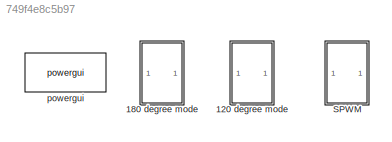
MODEL slx_749f4e8c5b97
KIND model
CONFIG AbsTol = auto
CONFIG EnableMultiTasking = off
CONFIG FixedStep = auto
CONFIG MaxStep = auto
CONFIG MinStep = auto
CONFIG RelTol = 1e-3
CONFIG SampleTimeConstraint = Unconstrained
CONFIG SolverName = VariableStepAuto
CONFIG StartTime = 0.0
CONFIG StopTime = 1
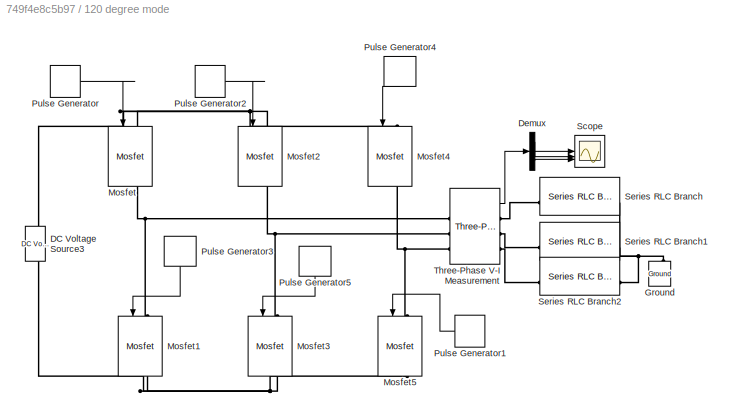
BLOCK [SubSystem] 120 degree mode
BLOCK [Reference] 120 degree mode/DC Voltage Source3  REF=spsDCVoltageSourceLib/DC Voltage Source
  LibrarySourceBlock = sps_lib/Sources/DC Voltage Source
  SourceBlock = spsDCVoltageSourceLib/DC Voltage Source
  SourceType = DC Voltage Source
BLOCK [Demux] 120 degree mode/Demux
  Outputs = 3
BLOCK [Reference] 120 degree mode/Ground  REF=spsGroundLib/Ground
  LibrarySourceBlock = sps_lib/Utilities/Ground
  NameLocation = right
  SourceBlock = spsGroundLib/Ground
  SourceType = Ground
BLOCK [Reference] 120 degree mode/Mosfet  REF=spsMosfetLib/Mosfet
  LibrarySourceBlock = sps_lib/Power Electronics/Mosfet
  NameLocation = left
  SourceBlock = spsMosfetLib/Mosfet
  SourceType = Mosfet
BLOCK [Reference] 120 degree mode/Mosfet1  REF=spsMosfetLib/Mosfet
  LibrarySourceBlock = sps_lib/Power Electronics/Mosfet
  NameLocation = left
  SourceBlock = spsMosfetLib/Mosfet
  SourceType = Mosfet
BLOCK [Reference] 120 degree mode/Mosfet2  REF=spsMosfetLib/Mosfet
  LibrarySourceBlock = sps_lib/Power Electronics/Mosfet
  NameLocation = left
  SourceBlock = spsMosfetLib/Mosfet
  SourceType = Mosfet
BLOCK [Reference] 120 degree mode/Mosfet3  REF=spsMosfetLib/Mosfet
  LibrarySourceBlock = sps_lib/Power Electronics/Mosfet
  NameLocation = left
  SourceBlock = spsMosfetLib/Mosfet
  SourceType = Mosfet
BLOCK [Reference] 120 degree mode/Mosfet4  REF=spsMosfetLib/Mosfet
  LibrarySourceBlock = sps_lib/Power Electronics/Mosfet
  NameLocation = left
  SourceBlock = spsMosfetLib/Mosfet
  SourceType = Mosfet
BLOCK [Reference] 120 degree mode/Mosfet5  REF=spsMosfetLib/Mosfet
  LibrarySourceBlock = sps_lib/Power Electronics/Mosfet
  NameLocation = left
  SourceBlock = spsMosfetLib/Mosfet
  SourceType = Mosfet
BLOCK [DiscretePulseGenerator] 120 degree mode/Pulse Generator
  Period = 1/50
  PulseType = Time based
  PulseWidth = (2/6)*100
BLOCK [DiscretePulseGenerator] 120 degree mode/Pulse Generator1
  NameLocation = top
  Period = 1/50
  PhaseDelay = (20e-3)/6
  PulseType = Time based
  PulseWidth = (2/6)*100
BLOCK [DiscretePulseGenerator] 120 degree mode/Pulse Generator2
  Period = 1/50
  PhaseDelay = 2*(20e-3)/6
  PulseType = Time based
  PulseWidth = (2/6)*100
BLOCK [DiscretePulseGenerator] 120 degree mode/Pulse Generator3
  NameLocation = left
  Period = 1/50
  PhaseDelay = 3*(20e-3)/6
  PulseType = Time based
  PulseWidth = (2/6)*100
BLOCK [DiscretePulseGenerator] 120 degree mode/Pulse Generator4
  NameLocation = left
  Period = 1/50
  PhaseDelay = 4*(20e-3)/6
  PulseType = Time based
  PulseWidth = (2/6)*100
BLOCK [DiscretePulseGenerator] 120 degree mode/Pulse Generator5
  NameLocation = left
  Period = 1/50
  PhaseDelay = 5*(20e-3)/6
  PulseType = Time based
  PulseWidth = (2/6)*100
BLOCK [Scope] 120 degree mode/Scope
  Floating = off
  NumInputPorts = 3
  ScopeSpecificationString = Simulink.scopes.TimeScopeBlockCfg('CurrentConfiguration', extmgr.ConfigurationSet(extmgr.Configuration('Core','General UI',true,'FigureColor',[1 1 1]),extmgr.Configuration('Core','Source UI',true),extmgr.Configuration('Sources','WiredSimulink',true,'DataLoggingVariableName','onetwenty','DataLogging',true),extmgr.Configuration('Visuals','Time Domain',true,'SerializedDisplays',{struct('MinYLimReal',...<+3191ch>
BLOCK [Reference] 120 degree mode/Series RLC Branch  REF=spsSeriesRLCBranchLib/Series RLC Branch
  LibrarySourceBlock = sps_lib/Passives/Series RLC Branch
  SourceBlock = spsSeriesRLCBranchLib/Series RLC Branch
  SourceType = Series RLC Branch
BLOCK [Reference] 120 degree mode/Series RLC Branch1  REF=spsSeriesRLCBranchLib/Series RLC Branch
  LibrarySourceBlock = sps_lib/Passives/Series RLC Branch
  SourceBlock = spsSeriesRLCBranchLib/Series RLC Branch
  SourceType = Series RLC Branch
BLOCK [Reference] 120 degree mode/Series RLC Branch2  REF=spsSeriesRLCBranchLib/Series RLC Branch
  LibrarySourceBlock = sps_lib/Passives/Series RLC Branch
  SourceBlock = spsSeriesRLCBranchLib/Series RLC Branch
  SourceType = Series RLC Branch
BLOCK [Reference] 120 degree mode/Three-Phase V-I Measurement  REF=spsThreePhaseVIMeasurementLib/Three-Phase
V-I Measurement
  LibrarySourceBlock = sps_lib/Sensors and Measurements/Three-Phase\nV-I Measurement
  SourceBlock = spsThreePhaseVIMeasurementLib/Three-Phase\nV-I Measurement
  SourceType = Three-Phase VI Measurement
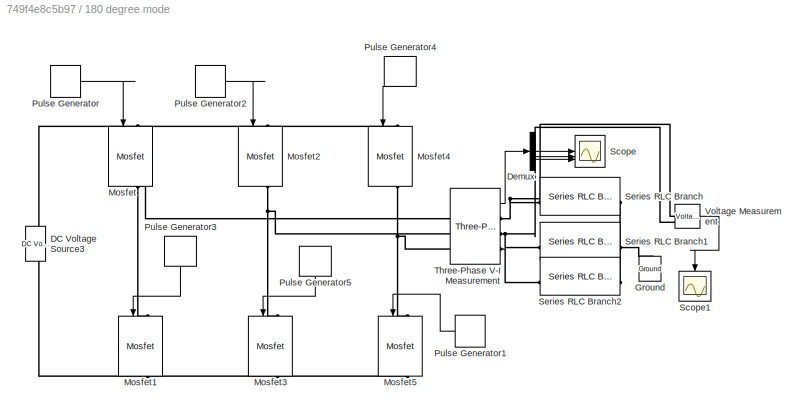
BLOCK [SubSystem] 180 degree mode
BLOCK [Reference] 180 degree mode/DC Voltage Source3  REF=spsDCVoltageSourceLib/DC Voltage Source
  LibrarySourceBlock = sps_lib/Sources/DC Voltage Source
  SourceBlock = spsDCVoltageSourceLib/DC Voltage Source
  SourceType = DC Voltage Source
BLOCK [Demux] 180 degree mode/Demux
  Outputs = 3
BLOCK [Reference] 180 degree mode/Ground  REF=spsGroundLib/Ground
  LibrarySourceBlock = sps_lib/Utilities/Ground
  NameLocation = right
  SourceBlock = spsGroundLib/Ground
  SourceType = Ground
BLOCK [Reference] 180 degree mode/Mosfet  REF=spsMosfetLib/Mosfet
  LibrarySourceBlock = sps_lib/Power Electronics/Mosfet
  NameLocation = left
  SourceBlock = spsMosfetLib/Mosfet
  SourceType = Mosfet
BLOCK [Reference] 180 degree mode/Mosfet1  REF=spsMosfetLib/Mosfet
  LibrarySourceBlock = sps_lib/Power Electronics/Mosfet
  NameLocation = left
  SourceBlock = spsMosfetLib/Mosfet
  SourceType = Mosfet
BLOCK [Reference] 180 degree mode/Mosfet2  REF=spsMosfetLib/Mosfet
  LibrarySourceBlock = sps_lib/Power Electronics/Mosfet
  NameLocation = left
  SourceBlock = spsMosfetLib/Mosfet
  SourceType = Mosfet
BLOCK [Reference] 180 degree mode/Mosfet3  REF=spsMosfetLib/Mosfet
  LibrarySourceBlock = sps_lib/Power Electronics/Mosfet
  NameLocation = left
  SourceBlock = spsMosfetLib/Mosfet
  SourceType = Mosfet
BLOCK [Reference] 180 degree mode/Mosfet4  REF=spsMosfetLib/Mosfet
  LibrarySourceBlock = sps_lib/Power Electronics/Mosfet
  NameLocation = left
  SourceBlock = spsMosfetLib/Mosfet
  SourceType = Mosfet
BLOCK [Reference] 180 degree mode/Mosfet5  REF=spsMosfetLib/Mosfet
  LibrarySourceBlock = sps_lib/Power Electronics/Mosfet
  NameLocation = left
  SourceBlock = spsMosfetLib/Mosfet
  SourceType = Mosfet
BLOCK [DiscretePulseGenerator] 180 degree mode/Pulse Generator
  Period = 1/50
  PulseType = Time based
  PulseWidth = 50
BLOCK [DiscretePulseGenerator] 180 degree mode/Pulse Generator1
  NameLocation = top
  Period = 1/50
  PhaseDelay = (20e-3)/6
  PulseType = Time based
  PulseWidth = 50
BLOCK [DiscretePulseGenerator] 180 degree mode/Pulse Generator2
  Period = 1/50
  PhaseDelay = 2*(20e-3)/6
  PulseType = Time based
  PulseWidth = 50
BLOCK [DiscretePulseGenerator] 180 degree mode/Pulse Generator3
  NameLocation = left
  Period = 1/50
  PhaseDelay = 3*(20e-3)/6
  PulseType = Time based
  PulseWidth = 50
BLOCK [DiscretePulseGenerator] 180 degree mode/Pulse Generator4
  NameLocation = left
  Period = 1/50
  PhaseDelay = 4*(20e-3)/6
  PulseType = Time based
  PulseWidth = 50
BLOCK [DiscretePulseGenerator] 180 degree mode/Pulse Generator5
  NameLocation = left
  Period = 1/50
  PhaseDelay = 5*(20e-3)/6
  PulseType = Time based
  PulseWidth = 50
BLOCK [Scope] 180 degree mode/Scope
  Floating = off
  NumInputPorts = 3
  ScopeSpecificationString = Simulink.scopes.TimeScopeBlockCfg('CurrentConfiguration', extmgr.ConfigurationSet(extmgr.Configuration('Core','General UI',true,'FigureColor',[1 1 1]),extmgr.Configuration('Core','Source UI',true),extmgr.Configuration('Sources','WiredSimulink',true,'DataLogging',true,'DataLoggingVariableName','oneeighty'),extmgr.Configuration('Visuals','Time Domain',true,'SerializedDisplays',{struct('MinYLimReal',...<+3240ch>
BLOCK [Scope] 180 degree mode/Scope1
  Floating = off
  NameLocation = left
  NumInputPorts = 1
  ScopeSpecificationString = Simulink.scopes.TimeScopeBlockCfg('CurrentConfiguration', extmgr.ConfigurationSet(extmgr.Configuration('Core','General UI',true),extmgr.Configuration('Core','Source UI',true),extmgr.Configuration('Sources','WiredSimulink',true,'DataLoggingVariableName','ScopeData1'),extmgr.Configuration('Visuals','Time Domain',true,'SerializedDisplays',{struct('MinYLimReal','-113.63616','MaxYLimReal','113.63616','...<+1444ch>
BLOCK [Reference] 180 degree mode/Series RLC Branch  REF=spsSeriesRLCBranchLib/Series RLC Branch
  LibrarySourceBlock = sps_lib/Passives/Series RLC Branch
  SourceBlock = spsSeriesRLCBranchLib/Series RLC Branch
  SourceType = Series RLC Branch
BLOCK [Reference] 180 degree mode/Series RLC Branch1  REF=spsSeriesRLCBranchLib/Series RLC Branch
  LibrarySourceBlock = sps_lib/Passives/Series RLC Branch
  SourceBlock = spsSeriesRLCBranchLib/Series RLC Branch
  SourceType = Series RLC Branch
BLOCK [Reference] 180 degree mode/Series RLC Branch2  REF=spsSeriesRLCBranchLib/Series RLC Branch
  LibrarySourceBlock = sps_lib/Passives/Series RLC Branch
  SourceBlock = spsSeriesRLCBranchLib/Series RLC Branch
  SourceType = Series RLC Branch
BLOCK [Reference] 180 degree mode/Three-Phase V-I Measurement  REF=spsThreePhaseVIMeasurementLib/Three-Phase
V-I Measurement
  LibrarySourceBlock = sps_lib/Sensors and Measurements/Three-Phase\nV-I Measurement
  SourceBlock = spsThreePhaseVIMeasurementLib/Three-Phase\nV-I Measurement
  SourceType = Three-Phase VI Measurement
BLOCK [Reference] 180 degree mode/Voltage Measurement  REF=spsVoltageMeasurementLib/Voltage Measurement
  LibrarySourceBlock = sps_lib/Sensors and Measurements/Voltage Measurement
  SourceBlock = spsVoltageMeasurementLib/Voltage Measurement
  SourceType = Voltage Measurement
  UserDataPersistent = on
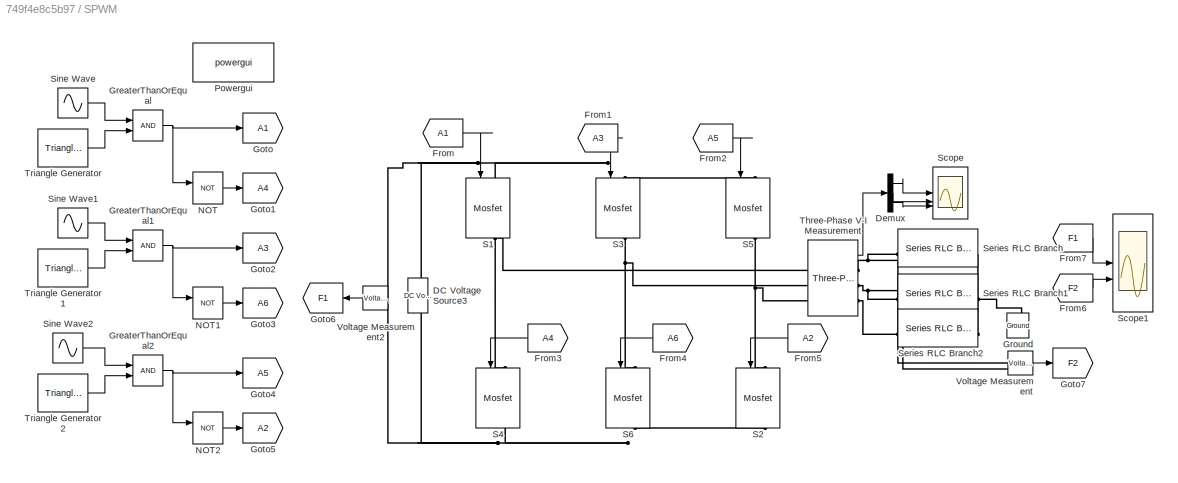
BLOCK [SubSystem] SPWM
BLOCK [Reference] SPWM/DC Voltage Source3  REF=spsDCVoltageSourceLib/DC Voltage Source
  LibrarySourceBlock = sps_lib/Sources/DC Voltage Source
  SourceBlock = spsDCVoltageSourceLib/DC Voltage Source
  SourceType = DC Voltage Source
BLOCK [Demux] SPWM/Demux
  Outputs = 3
BLOCK [From] SPWM/From
  GotoTag = A1
BLOCK [From] SPWM/From1
  GotoTag = A3
BLOCK [From] SPWM/From2
  GotoTag = A5
BLOCK [From] SPWM/From3
  GotoTag = A4
  NameLocation = top
BLOCK [From] SPWM/From4
  GotoTag = A6
  NameLocation = top
BLOCK [From] SPWM/From5
  GotoTag = A2
  NameLocation = top
BLOCK [From] SPWM/From6
  GotoTag = F2
BLOCK [From] SPWM/From7
  GotoTag = F1
BLOCK [Goto] SPWM/Goto
  GotoTag = A1
BLOCK [Goto] SPWM/Goto1
  GotoTag = A4
BLOCK [Goto] SPWM/Goto2
  GotoTag = A3
BLOCK [Goto] SPWM/Goto3
  GotoTag = A6
BLOCK [Goto] SPWM/Goto4
  GotoTag = A5
BLOCK [Goto] SPWM/Goto5
  GotoTag = A2
BLOCK [Goto] SPWM/Goto6
  GotoTag = F1
  NameLocation = top
BLOCK [Goto] SPWM/Goto7
  GotoTag = F2
BLOCK [RelationalOperator] SPWM/GreaterThanOrEqual
  InputSameDT = off
  OutDataTypeStr = boolean
  RndMeth = Simplest
BLOCK [RelationalOperator] SPWM/GreaterThanOrEqual1
  InputSameDT = off
  OutDataTypeStr = boolean
  RndMeth = Simplest
BLOCK [RelationalOperator] SPWM/GreaterThanOrEqual2
  InputSameDT = off
  OutDataTypeStr = boolean
  RndMeth = Simplest
BLOCK [Reference] SPWM/Ground  REF=spsGroundLib/Ground
  LibrarySourceBlock = sps_lib/Utilities/Ground
  NameLocation = right
  SourceBlock = spsGroundLib/Ground
  SourceType = Ground
BLOCK [Logic] SPWM/NOT
  AllPortsSameDT = off
  IconShape = distinctive
  Operator = NOT
  OutDataTypeStr = boolean
BLOCK [Logic] SPWM/NOT1
  AllPortsSameDT = off
  IconShape = distinctive
  Operator = NOT
  OutDataTypeStr = boolean
BLOCK [Logic] SPWM/NOT2
  AllPortsSameDT = off
  IconShape = distinctive
  Operator = NOT
  OutDataTypeStr = boolean
BLOCK [Reference] SPWM/Powergui  REF=spspowerguiLib/powergui
  LibrarySourceBlock = sps_lib/powergui
  Priority = 1
  SourceBlock = spspowerguiLib/powergui
  SourceType = PSB option menu block
BLOCK [Reference] SPWM/S1  REF=spsMosfetLib/Mosfet
  LibrarySourceBlock = sps_lib/Power Electronics/Mosfet
  NameLocation = left
  SourceBlock = spsMosfetLib/Mosfet
  SourceType = Mosfet
BLOCK [Reference] SPWM/S2  REF=spsMosfetLib/Mosfet
  LibrarySourceBlock = sps_lib/Power Electronics/Mosfet
  NameLocation = left
  SourceBlock = spsMosfetLib/Mosfet
  SourceType = Mosfet
BLOCK [Reference] SPWM/S3  REF=spsMosfetLib/Mosfet
  LibrarySourceBlock = sps_lib/Power Electronics/Mosfet
  NameLocation = left
  SourceBlock = spsMosfetLib/Mosfet
  SourceType = Mosfet
BLOCK [Reference] SPWM/S4  REF=spsMosfetLib/Mosfet
  LibrarySourceBlock = sps_lib/Power Electronics/Mosfet
  NameLocation = left
  SourceBlock = spsMosfetLib/Mosfet
  SourceType = Mosfet
BLOCK [Reference] SPWM/S5  REF=spsMosfetLib/Mosfet
  LibrarySourceBlock = sps_lib/Power Electronics/Mosfet
  NameLocation = left
  SourceBlock = spsMosfetLib/Mosfet
  SourceType = Mosfet
BLOCK [Reference] SPWM/S6  REF=spsMosfetLib/Mosfet
  LibrarySourceBlock = sps_lib/Power Electronics/Mosfet
  NameLocation = left
  SourceBlock = spsMosfetLib/Mosfet
  SourceType = Mosfet
BLOCK [Scope] SPWM/Scope
  Floating = off
  NumInputPorts = 3
  ScopeSpecificationString = Simulink.scopes.TimeScopeBlockCfg('CurrentConfiguration', extmgr.ConfigurationSet(extmgr.Configuration('Core','General UI',true,'FigureColor',[1 1 1]),extmgr.Configuration('Core','Source UI',true),extmgr.Configuration('Sources','WiredSimulink',true,'DataLoggingVariableName','SPWM','DataLogging',true),extmgr.Configuration('Visuals','Time Domain',true,'SerializedDisplays',{struct('MinYLimReal','-75....<+3245ch>
BLOCK [Scope] SPWM/Scope1
  Floating = off
  NumInputPorts = 2
  ScopeSpecificationString = Simulink.scopes.TimeScopeBlockCfg('CurrentConfiguration', extmgr.ConfigurationSet(extmgr.Configuration('Core','General UI',true,'FigureColor',[1 1 1]),extmgr.Configuration('Core','Source UI',true),extmgr.Configuration('Sources','WiredSimulink',true,'DataLoggingVariableName','VAB','DataLogging',true),extmgr.Configuration('Visuals','Time Domain',true,'SerializedDisplays',{struct('MinYLimReal','-113....<+2468ch>
BLOCK [Reference] SPWM/Series RLC Branch  REF=spsSeriesRLCBranchLib/Series RLC Branch
  LibrarySourceBlock = sps_lib/Passives/Series RLC Branch
  SourceBlock = spsSeriesRLCBranchLib/Series RLC Branch
  SourceType = Series RLC Branch
BLOCK [Reference] SPWM/Series RLC Branch1  REF=spsSeriesRLCBranchLib/Series RLC Branch
  LibrarySourceBlock = sps_lib/Passives/Series RLC Branch
  SourceBlock = spsSeriesRLCBranchLib/Series RLC Branch
  SourceType = Series RLC Branch
BLOCK [Reference] SPWM/Series RLC Branch2  REF=spsSeriesRLCBranchLib/Series RLC Branch
  LibrarySourceBlock = sps_lib/Passives/Series RLC Branch
  SourceBlock = spsSeriesRLCBranchLib/Series RLC Branch
  SourceType = Series RLC Branch
BLOCK [Sin] SPWM/Sine Wave
  Amplitude = 0.9
  Frequency = 314
  SampleTime = 0
BLOCK [Sin] SPWM/Sine Wave1
  Amplitude = 0.9
  Frequency = 314
  Phase = 120*(pi/180)
  SampleTime = 0
BLOCK [Sin] SPWM/Sine Wave2
  Amplitude = 0.9
  Frequency = 314
  Phase = 240*(pi/180)
  SampleTime = 0
BLOCK [Reference] SPWM/Three-Phase V-I Measurement  REF=spsThreePhaseVIMeasurementLib/Three-Phase
V-I Measurement
  LibrarySourceBlock = sps_lib/Sensors and Measurements/Three-Phase\nV-I Measurement
  SourceBlock = spsThreePhaseVIMeasurementLib/Three-Phase\nV-I Measurement
  SourceType = Three-Phase VI Measurement
BLOCK [Reference] SPWM/Triangle Generator  REF=spsTriangleGeneratorLib/Triangle
Generator
  LibrarySourceBlock = sps_lib/Sources/Signal Generator Sources/Triangle\nGenerator
  SourceBlock = spsTriangleGeneratorLib/Triangle\nGenerator
  SourceType = Triangle Generator
BLOCK [Reference] SPWM/Triangle Generator1  REF=spsTriangleGeneratorLib/Triangle
Generator
  LibrarySourceBlock = sps_lib/Sources/Signal Generator Sources/Triangle\nGenerator
  SourceBlock = spsTriangleGeneratorLib/Triangle\nGenerator
  SourceType = Triangle Generator
BLOCK [Reference] SPWM/Triangle Generator2  REF=spsTriangleGeneratorLib/Triangle
Generator
  LibrarySourceBlock = sps_lib/Sources/Signal Generator Sources/Triangle\nGenerator
  SourceBlock = spsTriangleGeneratorLib/Triangle\nGenerator
  SourceType = Triangle Generator
BLOCK [Reference] SPWM/Voltage Measurement  REF=spsVoltageMeasurementLib/Voltage Measurement
  LibrarySourceBlock = sps_lib/Sensors and Measurements/Voltage Measurement
  SourceBlock = spsVoltageMeasurementLib/Voltage Measurement
  SourceType = Voltage Measurement
  UserDataPersistent = on
BLOCK [Reference] SPWM/Voltage Measurement2  REF=spsVoltageMeasurementLib/Voltage Measurement
  LibrarySourceBlock = sps_lib/Sensors and Measurements/Voltage Measurement
  NameLocation = top
  SourceBlock = spsVoltageMeasurementLib/Voltage Measurement
  SourceType = Voltage Measurement
  UserDataPersistent = on
BLOCK [Reference] powergui  REF=sps_lib/powergui
  Priority = 1
  SourceBlock = sps_lib/powergui
  SourceType = PSB option menu block
LINE 120 degree mode/Demux:1 -> 120 degree mode/Scope:1
LINE 120 degree mode/Demux:2 -> 120 degree mode/Scope:2
LINE 120 degree mode/Demux:3 -> 120 degree mode/Scope:3
LINE 120 degree mode/Pulse Generator1:1 -> 120 degree mode/Mosfet5:1
LINE 120 degree mode/Pulse Generator2:1 -> 120 degree mode/Mosfet2:1
LINE 120 degree mode/Pulse Generator3:1 -> 120 degree mode/Mosfet1:1
LINE 120 degree mode/Pulse Generator4:1 -> 120 degree mode/Mosfet4:1
LINE 120 degree mode/Pulse Generator5:1 -> 120 degree mode/Mosfet3:1
LINE 120 degree mode/Pulse Generator:1 -> 120 degree mode/Mosfet:1
LINE 120 degree mode/Three-Phase V-I Measurement:1 -> 120 degree mode/Demux:1
LINE 180 degree mode/Demux:1 -> 180 degree mode/Scope:1
LINE 180 degree mode/Demux:2 -> 180 degree mode/Scope:2
LINE 180 degree mode/Demux:3 -> 180 degree mode/Scope:3
LINE 180 degree mode/Pulse Generator1:1 -> 180 degree mode/Mosfet5:1
LINE 180 degree mode/Pulse Generator2:1 -> 180 degree mode/Mosfet2:1
LINE 180 degree mode/Pulse Generator3:1 -> 180 degree mode/Mosfet1:1
LINE 180 degree mode/Pulse Generator4:1 -> 180 degree mode/Mosfet4:1
LINE 180 degree mode/Pulse Generator5:1 -> 180 degree mode/Mosfet3:1
LINE 180 degree mode/Pulse Generator:1 -> 180 degree mode/Mosfet:1
LINE 180 degree mode/Three-Phase V-I Measurement:1 -> 180 degree mode/Demux:1
LINE 180 degree mode/Voltage Measurement:1 -> 180 degree mode/Scope1:1
LINE SPWM/Demux:1 -> SPWM/Scope:1
LINE SPWM/Demux:2 -> SPWM/Scope:2
LINE SPWM/Demux:3 -> SPWM/Scope:3
LINE SPWM/From1:1 -> SPWM/S3:1
LINE SPWM/From2:1 -> SPWM/S5:1
LINE SPWM/From3:1 -> SPWM/S4:1
LINE SPWM/From4:1 -> SPWM/S6:1
LINE SPWM/From5:1 -> SPWM/S2:1
LINE SPWM/From6:1 -> SPWM/Scope1:2
LINE SPWM/From7:1 -> SPWM/Scope1:1
LINE SPWM/From:1 -> SPWM/S1:1
NET SPWM/GreaterThanOrEqual1:1 -> SPWM/Goto2:1, SPWM/NOT1:1
NET SPWM/GreaterThanOrEqual2:1 -> SPWM/Goto4:1, SPWM/NOT2:1
NET SPWM/GreaterThanOrEqual:1 -> SPWM/Goto:1, SPWM/NOT:1
LINE SPWM/NOT1:1 -> SPWM/Goto3:1
LINE SPWM/NOT2:1 -> SPWM/Goto5:1
LINE SPWM/NOT:1 -> SPWM/Goto1:1
LINE SPWM/Sine Wave1:1 -> SPWM/GreaterThanOrEqual1:1
LINE SPWM/Sine Wave2:1 -> SPWM/GreaterThanOrEqual2:1
LINE SPWM/Sine Wave:1 -> SPWM/GreaterThanOrEqual:1
LINE SPWM/Three-Phase V-I Measurement:1 -> SPWM/Demux:1
LINE SPWM/Triangle Generator1:1 -> SPWM/GreaterThanOrEqual1:2
LINE SPWM/Triangle Generator2:1 -> SPWM/GreaterThanOrEqual2:2
LINE SPWM/Triangle Generator:1 -> SPWM/GreaterThanOrEqual:2
LINE SPWM/Voltage Measurement2:1 -> SPWM/Goto6:1
LINE SPWM/Voltage Measurement:1 -> SPWM/Goto7:1
PNET net1: 120 degree mode/DC Voltage Source3:LConn1 -- 120 degree mode/Mosfet1:RConn1 -- 120 degree mode/Mosfet3:RConn1 -- 120 degree mode/Mosfet5:RConn1
PNET net2: 120 degree mode/DC Voltage Source3:RConn1 -- 120 degree mode/Mosfet2:LConn1 -- 120 degree mode/Mosfet4:LConn1 -- 120 degree mode/Mosfet:LConn1
PNET net3: 120 degree mode/Ground:LConn1 -- 120 degree mode/Series RLC Branch1:RConn1 -- 120 degree mode/Series RLC Branch2:RConn1 -- 120 degree mode/Series RLC Branch:RConn1
PNET net4: 120 degree mode/Mosfet1:LConn1 -- 120 degree mode/Mosfet:RConn1 -- 120 degree mode/Three-Phase V-I Measurement:LConn1
PNET net5: 120 degree mode/Mosfet2:RConn1 -- 120 degree mode/Mosfet3:LConn1 -- 120 degree mode/Three-Phase V-I Measurement:LConn2
PNET net6: 120 degree mode/Mosfet4:RConn1 -- 120 degree mode/Mosfet5:LConn1 -- 120 degree mode/Three-Phase V-I Measurement:LConn3
PLINE 120 degree mode/Series RLC Branch1:LConn1 -- 120 degree mode/Three-Phase V-I Measurement:RConn2
PLINE 120 degree mode/Series RLC Branch2:LConn1 -- 120 degree mode/Three-Phase V-I Measurement:RConn3
PLINE 120 degree mode/Series RLC Branch:LConn1 -- 120 degree mode/Three-Phase V-I Measurement:RConn1
PNET net7: 180 degree mode/DC Voltage Source3:LConn1 -- 180 degree mode/Mosfet1:RConn1 -- 180 degree mode/Mosfet3:RConn1 -- 180 degree mode/Mosfet5:RConn1
PNET net8: 180 degree mode/DC Voltage Source3:RConn1 -- 180 degree mode/Mosfet2:LConn1 -- 180 degree mode/Mosfet4:LConn1 -- 180 degree mode/Mosfet:LConn1
PNET net9: 180 degree mode/Ground:LConn1 -- 180 degree mode/Series RLC Branch1:RConn1 -- 180 degree mode/Series RLC Branch2:RConn1 -- 180 degree mode/Series RLC Branch:RConn1
PNET net10: 180 degree mode/Mosfet1:LConn1 -- 180 degree mode/Mosfet:RConn1 -- 180 degree mode/Three-Phase V-I Measurement:LConn1
PNET net11: 180 degree mode/Mosfet2:RConn1 -- 180 degree mode/Mosfet3:LConn1 -- 180 degree mode/Three-Phase V-I Measurement:LConn2
PNET net12: 180 degree mode/Mosfet4:RConn1 -- 180 degree mode/Mosfet5:LConn1 -- 180 degree mode/Three-Phase V-I Measurement:LConn3
PNET net13: 180 degree mode/Series RLC Branch1:LConn1 -- 180 degree mode/Three-Phase V-I Measurement:RConn2 -- 180 degree mode/Voltage Measurement:LConn2
PLINE 180 degree mode/Series RLC Branch2:LConn1 -- 180 degree mode/Three-Phase V-I Measurement:RConn3
PNET net14: 180 degree mode/Series RLC Branch:LConn1 -- 180 degree mode/Three-Phase V-I Measurement:RConn1 -- 180 degree mode/Voltage Measurement:LConn1
PNET net15: SPWM/DC Voltage Source3:LConn1 -- SPWM/S2:RConn1 -- SPWM/S4:RConn1 -- SPWM/S6:RConn1 -- SPWM/Voltage Measurement2:LConn2
PNET net16: SPWM/DC Voltage Source3:RConn1 -- SPWM/S1:LConn1 -- SPWM/S3:LConn1 -- SPWM/S5:LConn1 -- SPWM/Voltage Measurement2:LConn1
PNET net17: SPWM/Ground:LConn1 -- SPWM/Series RLC Branch1:RConn1 -- SPWM/Series RLC Branch2:RConn1 -- SPWM/Series RLC Branch:RConn1
PNET net18: SPWM/S1:RConn1 -- SPWM/S4:LConn1 -- SPWM/Three-Phase V-I Measurement:LConn1
PNET net19: SPWM/S2:LConn1 -- SPWM/S5:RConn1 -- SPWM/Three-Phase V-I Measurement:LConn3
PNET net20: SPWM/S3:RConn1 -- SPWM/S6:LConn1 -- SPWM/Three-Phase V-I Measurement:LConn2
PNET net21: SPWM/Series RLC Branch1:LConn1 -- SPWM/Three-Phase V-I Measurement:RConn2 -- SPWM/Voltage Measurement:LConn2
PLINE SPWM/Series RLC Branch2:LConn1 -- SPWM/Three-Phase V-I Measurement:RConn3
PNET net22: SPWM/Series RLC Branch:LConn1 -- SPWM/Three-Phase V-I Measurement:RConn1 -- SPWM/Voltage Measurement:LConn1
note: NET lines group one-source signal fan-out (src -> all destinations, sorted); 1:1 wires keep LINE; PNET lines group multi-terminal physical nets as a canonical sorted terminal list (undirected conserving connections); 2-terminal nets keep the pairwise PLINE form
